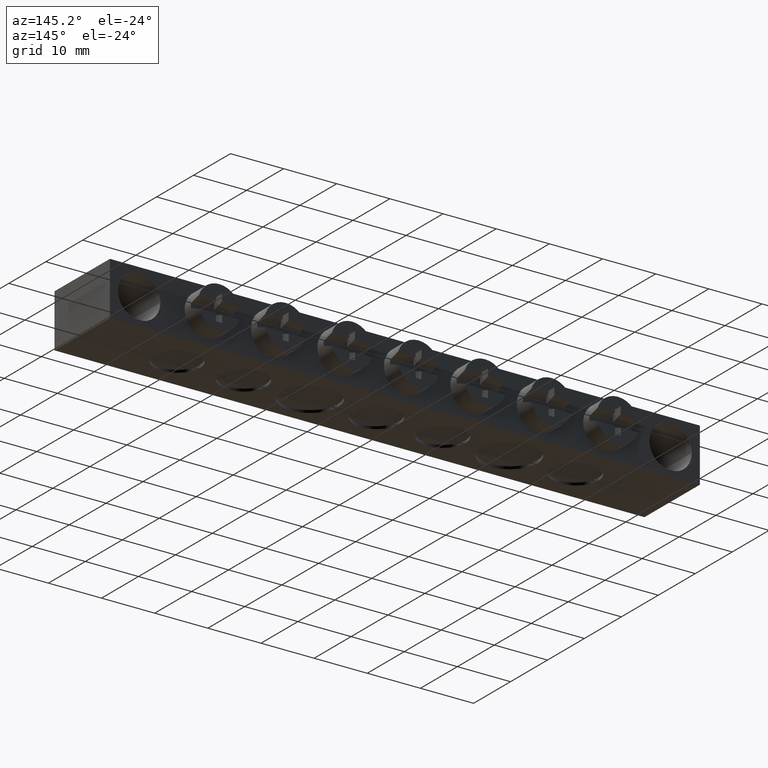
[diagram: clean part render]
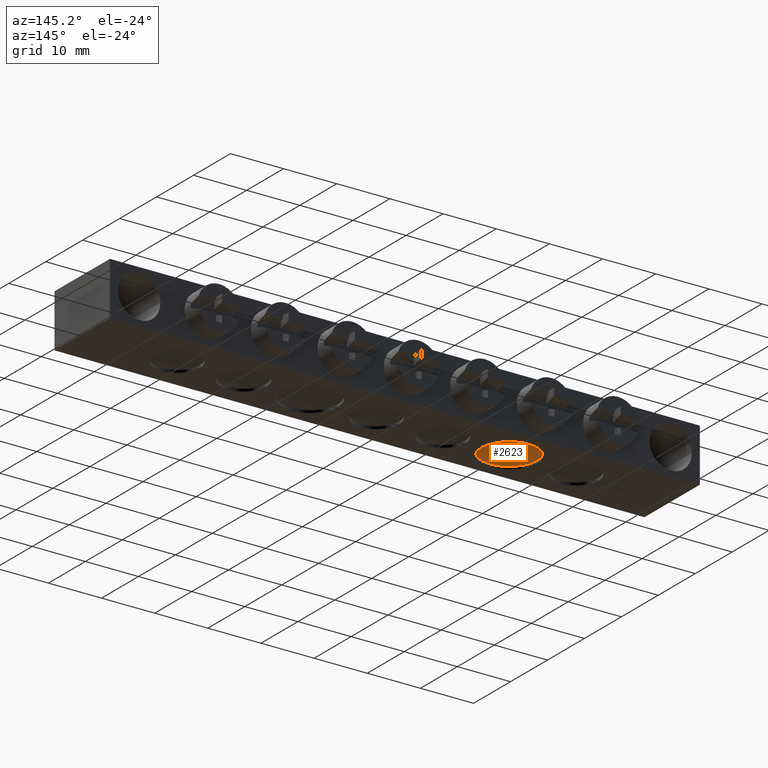
[diagram: same view with one face highlighted and labeled with its STEP entity id]
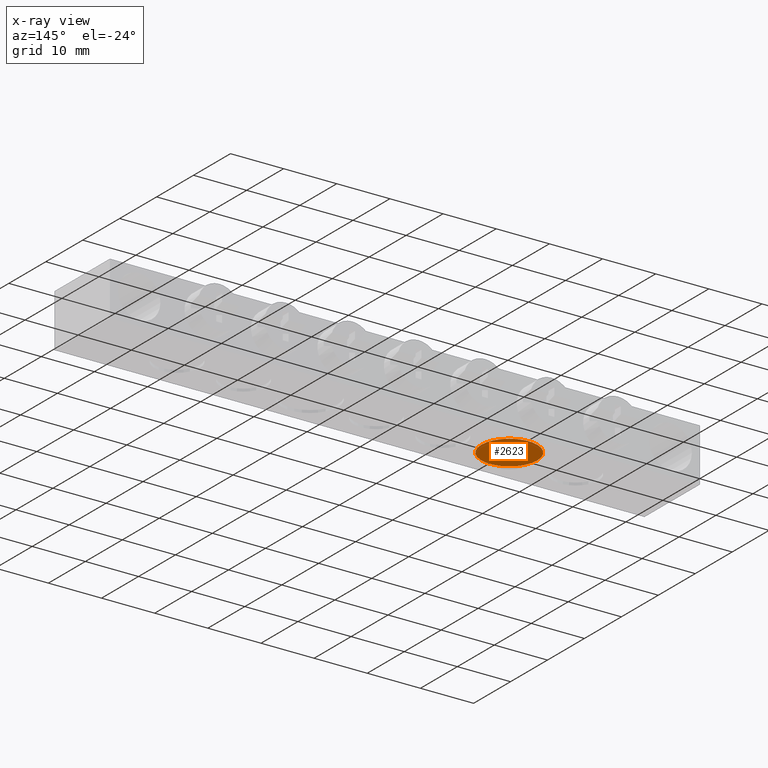
[diagram: x-ray of the same camera — body ghosted, the highlighted face saturated]
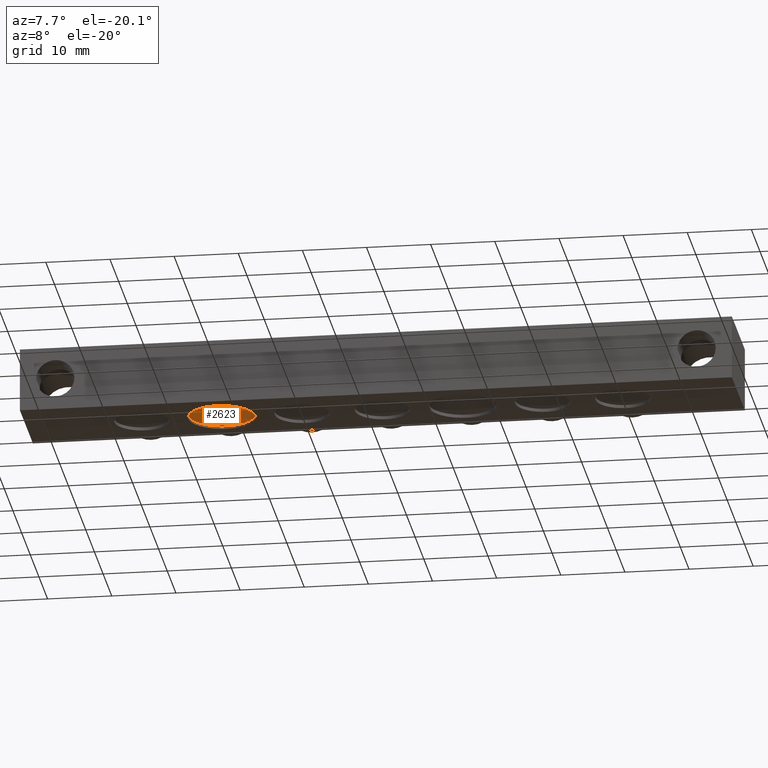
[diagram: same view with one face highlighted and labeled with its STEP entity id]
A machine part, auxiliary view. The second image highlights one B-rep face of the part: STEP entity #2623.
The next image is the same camera in x-ray: the body ghosted, the highlighted face saturated — about 0% of this face is hidden behind the body in this view.
A second angle (auxiliary view) of the same face is appended — the face is thin or edge-on in the first view.
In plain terms, the highlighted planar face has unit normal (0, 0, -1).
Its self-contained STEP definition (entity closure, byte-faithful):
#347 = EDGE_LOOP ( 'NONE', ( #3982, #3990 ) ) ;
#1000 = AXIS2_PLACEMENT_3D ( 'NONE', #1856, #1863, #1858 ) ;
#1237 = CIRCLE ( 'NONE', #1255, 5.249999999999997300 ) ;
#1255 = AXIS2_PLACEMENT_3D ( 'NONE', #3135, #3152, #3128 ) ;
#1412 = CIRCLE ( 'NONE', #1414, 5.249999999999997300 ) ;
#1414 = AXIS2_PLACEMENT_3D ( 'NONE', #4635, #4650, #4614 ) ;
#1855 = FACE_OUTER_BOUND ( 'NONE', #347, .T. ) ;
#1856 = CARTESIAN_POINT ( 'NONE',  ( 105.8948358936521900, 0.5000000000000038900, -9.500000000000000000 ) ) ;
#1858 = DIRECTION ( 'NONE',  ( -1.000000000000000000, 0.0000000000000000000, -0.0000000000000000000 ) ) ;
#1863 = DIRECTION ( 'NONE',  ( 0.0000000000000000000, 0.0000000000000000000, -1.000000000000000000 ) ) ;
#1866 = PLANE ( 'NONE',  #1000 ) ;
#2356 = CARTESIAN_POINT ( 'NONE',  ( 42.25000000000000000, 7.299999999999998900, -9.500000000000001800 ) ) ;
#2381 = CARTESIAN_POINT ( 'NONE',  ( 31.75000000000000700, 7.299999999999999800, -9.500000000000001800 ) ) ;
#2623 = ADVANCED_FACE ( 'NONE', ( #1855 ), #1866, .T. ) ;
#2832 = EDGE_CURVE ( 'NONE', #3258, #3235, #1237, .T. ) ;
#3128 = DIRECTION ( 'NONE',  ( 1.000000000000000000, 0.0000000000000000000, 0.0000000000000000000 ) ) ;
#3135 = CARTESIAN_POINT ( 'NONE',  ( 37.00000000000000700, 7.299999999999998900, -9.500000000000001800 ) ) ;
#3152 = DIRECTION ( 'NONE',  ( -0.0000000000000000000, -0.0000000000000000000, -1.000000000000000000 ) ) ;
#3235 = VERTEX_POINT ( 'NONE', #2381 ) ;
#3258 = VERTEX_POINT ( 'NONE', #2356 ) ;
#3982 = ORIENTED_EDGE ( 'NONE', *, *, #2832, .T. ) ;
#3990 = ORIENTED_EDGE ( 'NONE', *, *, #4980, .T. ) ;
#4614 = DIRECTION ( 'NONE',  ( 1.000000000000000000, 0.0000000000000000000, 0.0000000000000000000 ) ) ;
#4635 = CARTESIAN_POINT ( 'NONE',  ( 37.00000000000000700, 7.299999999999998900, -9.500000000000001800 ) ) ;
#4650 = DIRECTION ( 'NONE',  ( -0.0000000000000000000, -0.0000000000000000000, -1.000000000000000000 ) ) ;
#4980 = EDGE_CURVE ( 'NONE', #3235, #3258, #1412, .T. ) ;